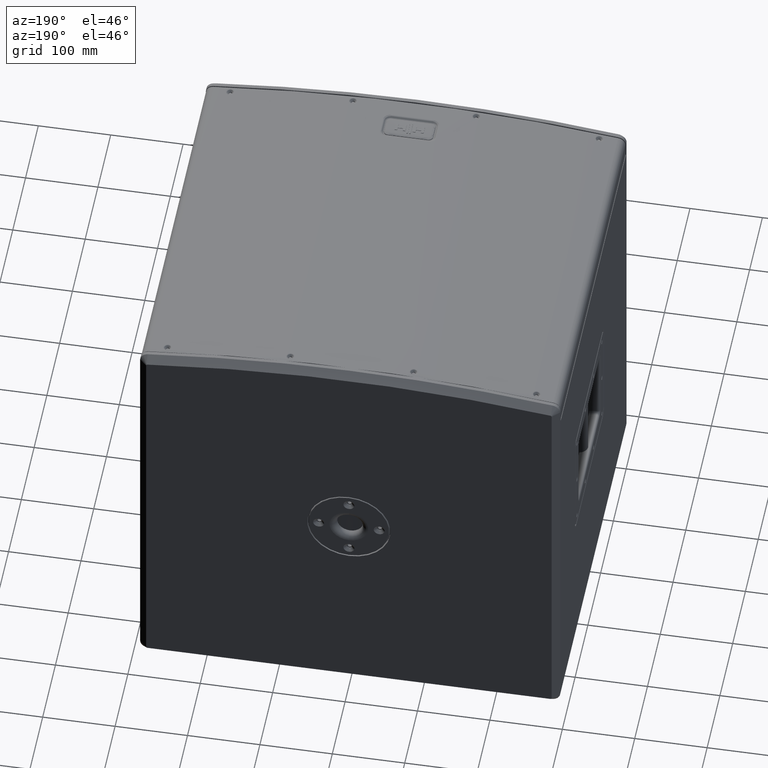
[diagram: clean part render]
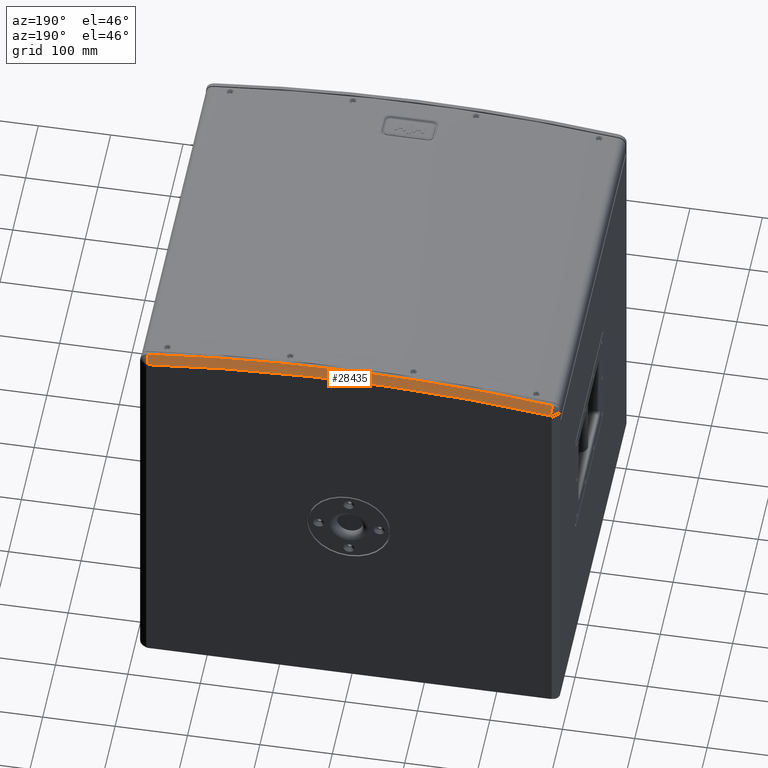
[diagram: same view with one face highlighted and labeled with its STEP entity id]
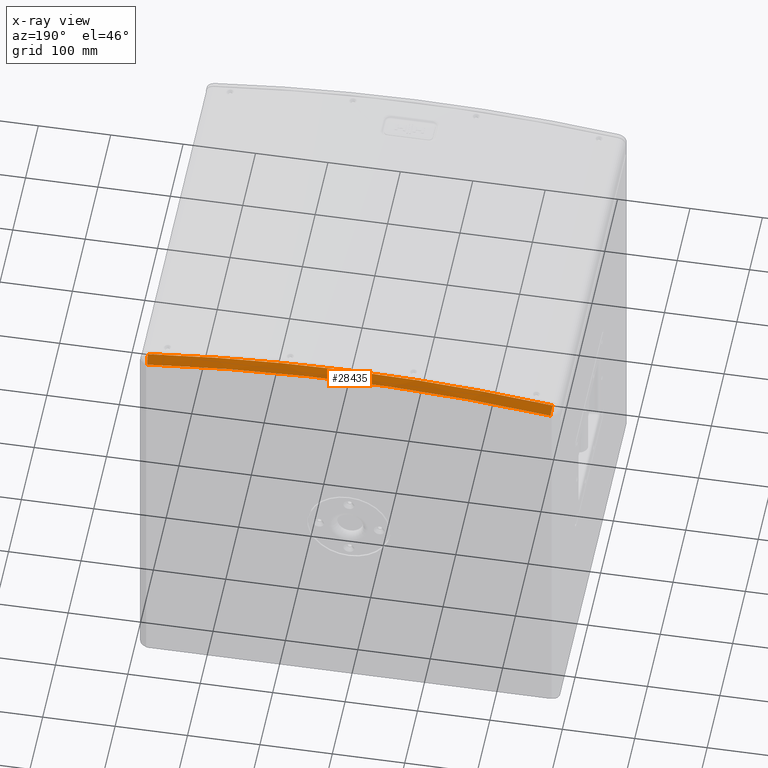
[diagram: x-ray of the same camera — body ghosted, the highlighted face saturated]
A machine part, auxiliary view. The second image highlights one B-rep face of the part: STEP entity #28435.
The next image is the same camera in x-ray: the body ghosted, the highlighted face saturated — about 0% of this face is hidden behind the body in this view.
In plain terms, the highlighted conical surface has half-angle 45 deg.
Its self-contained STEP definition (entity closure, byte-faithful):
#739 = LINE ( 'NONE', #22987, #18193 ) ;
#770 = DIRECTION ( 'NONE',  ( -0.0000000000000000000, -1.000000000000000000, -0.0000000000000000000 ) ) ;
#1485 = AXIS2_PLACEMENT_3D ( 'NONE', #21327, #18372, #31553 ) ;
#2049 = ORIENTED_EDGE ( 'NONE', *, *, #4550, .F. ) ;
#2848 = VERTEX_POINT ( 'NONE', #36785 ) ;
#4172 = CARTESIAN_POINT ( 'NONE',  ( -2.775557561562891351E-14, 260.0000000000002274, -1905.302604547234296 ) ) ;
#4235 = DIRECTION ( 'NONE',  ( 0.0000000000000000000, 0.0000000000000000000, -1.000000000000000000 ) ) ;
#4550 = EDGE_CURVE ( 'NONE', #6465, #29449, #38515, .T. ) ;
#4588 = DIRECTION ( 'NONE',  ( 0.0000000000000000000, 0.0000000000000000000, -1.000000000000000000 ) ) ;
#6465 = VERTEX_POINT ( 'NONE', #33891 ) ;
#7059 = VERTEX_POINT ( 'NONE', #15447 ) ;
#7063 = DIRECTION ( 'NONE',  ( -0.08984263490395941187, -0.7071067811865447972, 0.7013760054018940426 ) ) ;
#7521 = EDGE_LOOP ( 'NONE', ( #30799, #2049, #11863, #13726, #11095 ) ) ;
#8605 = EDGE_CURVE ( 'NONE', #36344, #6465, #14762, .T. ) ;
#9121 = CARTESIAN_POINT ( 'NONE',  ( -279.5246800731261487, 260.0000000000002274, 276.8674056100901453 ) ) ;
#10232 = CONICAL_SURFACE ( 'NONE', #28547, 2200.000000000000000, 0.7853981633974482790 ) ;
#11095 = ORIENTED_EDGE ( 'NONE', *, *, #21803, .F. ) ;
#11177 = DIRECTION ( 'NONE',  ( 0.0000000000000000000, 0.0000000000000000000, -1.000000000000000000 ) ) ;
#11863 = ORIENTED_EDGE ( 'NONE', *, *, #8605, .F. ) ;
#13037 = DIRECTION ( 'NONE',  ( 0.08984263490395519303, -0.7071067811865117125, 0.7013760054019279044 ) ) ;
#13287 = CARTESIAN_POINT ( 'NONE',  ( -2.775557561562891351E-14, 260.0000000000002274, -1905.302604547234296 ) ) ;
#13726 = ORIENTED_EDGE ( 'NONE', *, *, #33467, .F. ) ;
#14762 = CIRCLE ( 'NONE', #18151, 2200.000000000000000 ) ;
#15425 = AXIS2_PLACEMENT_3D ( 'NONE', #4172, #20004, #4588 ) ;
#15447 = CARTESIAN_POINT ( 'NONE',  ( 278.2541133455208069, 270.0000000000000000, 266.9484510184652777 ) ) ;
#18151 = AXIS2_PLACEMENT_3D ( 'NONE', #33692, #20495, #4235 ) ;
#18193 = VECTOR ( 'NONE', #13037, 1000.000000000000114 ) ;
#18372 = DIRECTION ( 'NONE',  ( -0.0000000000000000000, 1.000000000000000000, -0.0000000000000000000 ) ) ;
#20004 = DIRECTION ( 'NONE',  ( -0.0000000000000000000, -1.000000000000000000, -0.0000000000000000000 ) ) ;
#20495 = DIRECTION ( 'NONE',  ( -0.0000000000000000000, -1.000000000000000000, -0.0000000000000000000 ) ) ;
#21327 = CARTESIAN_POINT ( 'NONE',  ( -2.775557561562891351E-14, 270.0000000000000000, -1905.302604547234296 ) ) ;
#21803 = EDGE_CURVE ( 'NONE', #2848, #7059, #31282, .T. ) ;
#22987 = CARTESIAN_POINT ( 'NONE',  ( 278.2541133455208069, 270.0000000000000000, 266.9484510184652777 ) ) ;
#23165 = LINE ( 'NONE', #36164, #34339 ) ;
#25459 = EDGE_CURVE ( 'NONE', #2848, #29449, #23165, .T. ) ;
#26016 = FACE_OUTER_BOUND ( 'NONE', #7521, .T. ) ;
#28435 = ADVANCED_FACE ( 'NONE', ( #26016 ), #10232, .T. ) ;
#28547 = AXIS2_PLACEMENT_3D ( 'NONE', #13287, #770, #11177 ) ;
#29449 = VERTEX_POINT ( 'NONE', #9121 ) ;
#30799 = ORIENTED_EDGE ( 'NONE', *, *, #25459, .T. ) ;
#31282 = CIRCLE ( 'NONE', #1485, 2189.999999999999545 ) ;
#31553 = DIRECTION ( 'NONE',  ( 5.329070518200752183E-15, 0.0000000000000000000, -1.000000000000000000 ) ) ;
#33467 = EDGE_CURVE ( 'NONE', #7059, #36344, #739, .T. ) ;
#33692 = CARTESIAN_POINT ( 'NONE',  ( -2.775557561562891351E-14, 260.0000000000002274, -1905.302604547234296 ) ) ;
#33891 = CARTESIAN_POINT ( 'NONE',  ( -2.775557561562891351E-14, 260.0000000000002274, 294.6973954527658748 ) ) ;
#34339 = VECTOR ( 'NONE', #7063, 1000.000000000000000 ) ;
#36164 = CARTESIAN_POINT ( 'NONE',  ( -278.2541133455210343, 270.0000000000000000, 266.9484510184661303 ) ) ;
#36344 = VERTEX_POINT ( 'NONE', #38503 ) ;
#36785 = CARTESIAN_POINT ( 'NONE',  ( -278.2541133455210343, 270.0000000000000000, 266.9484510184661303 ) ) ;
#38503 = CARTESIAN_POINT ( 'NONE',  ( 279.5246800731259214, 260.0000000000002274, 276.8674056100901453 ) ) ;
#38515 = CIRCLE ( 'NONE', #15425, 2200.000000000000000 ) ;